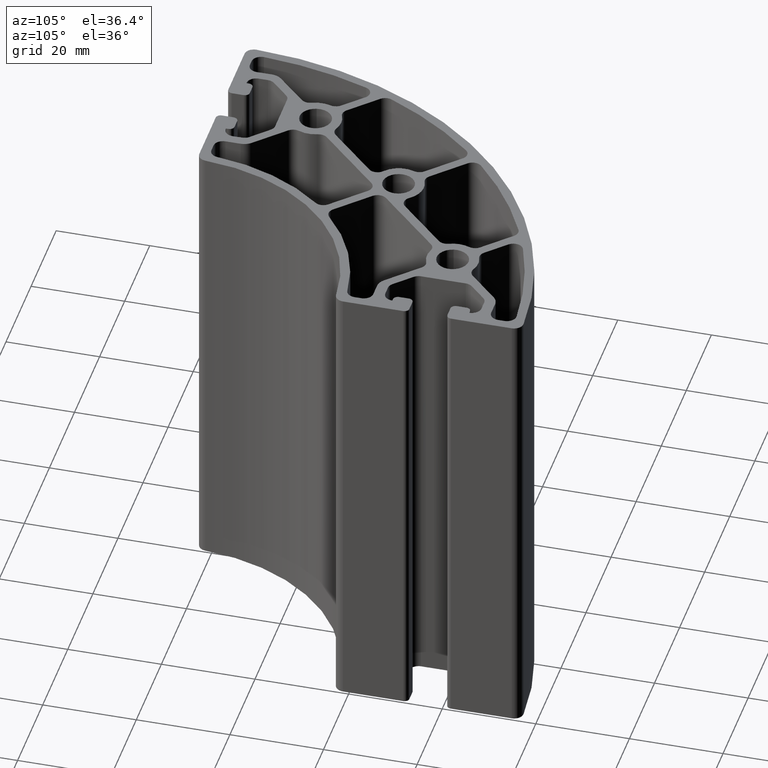
[diagram: clean part render]
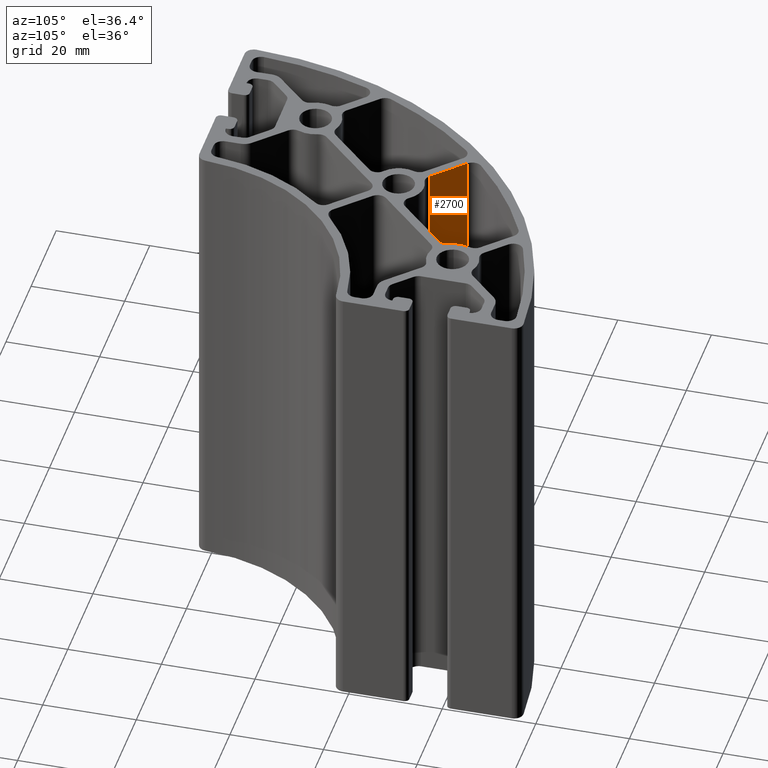
[diagram: same view with one face highlighted and labeled with its STEP entity id]
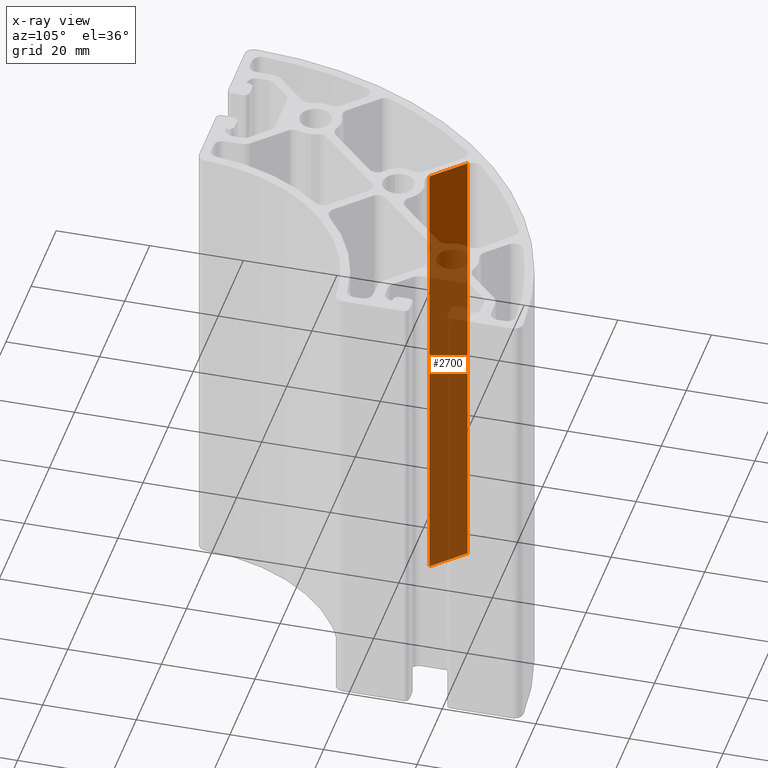
[diagram: x-ray of the same camera — body ghosted, the highlighted face saturated]
A machine part, auxiliary view. The second image highlights one B-rep face of the part: STEP entity #2700.
The next image is the same camera in x-ray: the body ghosted, the highlighted face saturated — about 82% of this face is hidden behind the body in this view.
In plain terms, the highlighted planar face has unit normal (-0.7071, -0.7071, 0).
Its self-contained STEP definition (entity closure, byte-faithful):
#295=FACE_OUTER_BOUND('',#438,.T.);
#438=EDGE_LOOP('',(#1800,#1801,#1802,#1803));
#600=LINE('',#4050,#848);
#601=LINE('',#4052,#849);
#602=LINE('',#4054,#850);
#603=LINE('',#4055,#851);
#848=VECTOR('',#3166,9.11169675906204);
#849=VECTOR('',#3167,100.);
#850=VECTOR('',#3168,9.11169675906204);
#851=VECTOR('',#3169,100.);
#1096=VERTEX_POINT('',#4048);
#1097=VERTEX_POINT('',#4049);
#1098=VERTEX_POINT('',#4051);
#1099=VERTEX_POINT('',#4053);
#1378=EDGE_CURVE('',#1096,#1097,#600,.T.);
#1379=EDGE_CURVE('',#1096,#1098,#601,.T.);
#1380=EDGE_CURVE('',#1099,#1098,#602,.T.);
#1381=EDGE_CURVE('',#1097,#1099,#603,.T.);
#1800=ORIENTED_EDGE('',*,*,#1378,.F.);
#1801=ORIENTED_EDGE('',*,*,#1379,.T.);
#1802=ORIENTED_EDGE('',*,*,#1380,.F.);
#1803=ORIENTED_EDGE('',*,*,#1381,.F.);
#2644=PLANE('',#2845);
#2700=ADVANCED_FACE('',(#295),#2644,.F.);
#2845=AXIS2_PLACEMENT_3D('',#4047,#3164,#3165);
#3164=DIRECTION('center_axis',(-0.707118833391751,-0.707094728775918,0.));
#3165=DIRECTION('ref_axis',(0.707094728775918,-0.707118833391751,0.));
#3166=DIRECTION('',(0.707094728775918,-0.707118833391751,0.));
#3167=DIRECTION('',(0.,0.,1.));
#3168=DIRECTION('',(-0.707094728775918,0.707118833391751,0.));
#3169=DIRECTION('',(0.,0.,1.));
#4047=CARTESIAN_POINT('Origin',(-10.6326759996123,11.8704260394892,0.));
#4048=CARTESIAN_POINT('',(-10.6326759996123,11.8704260394892,0.));
#4049=CARTESIAN_POINT('',(-4.18984325107491,5.42737365700186,0.));
#4050=CARTESIAN_POINT('',(-2.34375306171225,3.5812205350603,0.));
#4051=CARTESIAN_POINT('',(-10.6326759996123,11.8704260394892,100.));
#4052=CARTESIAN_POINT('',(-10.6326759996123,11.8704260394892,0.));
#4053=CARTESIAN_POINT('',(-4.18984325107491,5.42737365700186,100.));
#4054=CARTESIAN_POINT('',(-2.34375306171225,3.5812205350603,100.));
#4055=CARTESIAN_POINT('',(-4.18984325107491,5.42737365700186,0.));